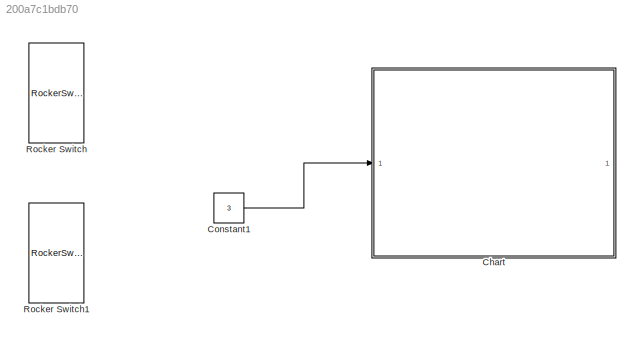
MODEL slx_200a7c1bdb70
KIND model
CONFIG AbsTol = auto
CONFIG EnableMultiTasking = off
CONFIG FixedStep = auto
CONFIG MaxStep = auto
CONFIG MinStep = auto
CONFIG RelTol = 1e-3
CONFIG SampleTimeConstraint = Unconstrained
CONFIG SolverName = VariableStepAuto
CONFIG StartTime = 0.0
CONFIG StopTime = inf
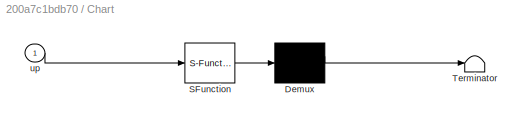
BLOCK [SubSystem] Chart
  ErrorFcn = Stateflow.Translate.translate
  PermitHierarchicalResolution = ExplicitOnly
  SFBlockType = Chart
  TreatAsAtomicUnit = on
BLOCK [Demux] Chart/ Demux 
  Outputs = 1
BLOCK [S-Function] Chart/ SFunction 
  EnableBusSupport = on
  FunctionName = sf_sfun
  PortCounts = [1 1]
  SFcnIsStateOwnerBlock = off
  SFunctionDeploymentMode = off
  Tag = Stateflow S-Function 3
BLOCK [Terminator] Chart/ Terminator 
BLOCK [Inport] Chart/up
BLOCK [Constant] Constant1
  Value = 3
BLOCK [RockerSwitchBlock] Rocker Switch
BLOCK [RockerSwitchBlock] Rocker Switch1
LINE Constant1:1 -> Chart:1
CHART Chart states=12 transitions=21
  STATE_LABEL 'Ground\n\nentry:\ndoor=1;\nexit:\ndoor=0;\n'
  STATE_LABEL 'first3\n\nentry:\ndoor=0;'
  STATE_LABEL 'first2\n\nentry:\ndoor=0;'
  STATE_LABEL 'second3\n\nentry:\ndoor=0;'
  STATE_LABEL 'second2\n\nentry:\ndoor=0;'
  STATE_LABEL 'first\n\nentry:\ndoor=1;\nexit:\ndoor=0;'
  STATE_LABEL 'first1\n\nentry:\ndoor=0;'
  STATE_LABEL 'second\n\nentry:\ndoor=1;\nexit:\ndoor=0;'
  STATE_LABEL 'first4\n\nentry:\ndoor=0;'
  STATE_LABEL 'third\n\nentry:\ndoor=1;\nexit:\ndoor=0;'
  STATE_LABEL 'second1\n\nentry:\ndoor=0;'
  STATE_LABEL 'second4\n\nentry:\ndoor=0;'
CHART  states=0 transitions=0
